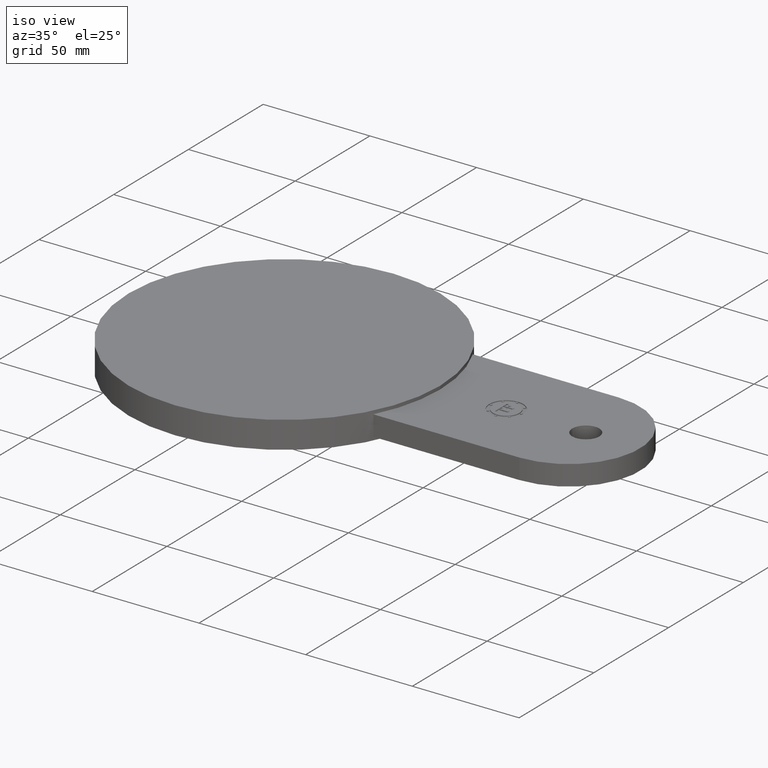
[diagram: clean part render]
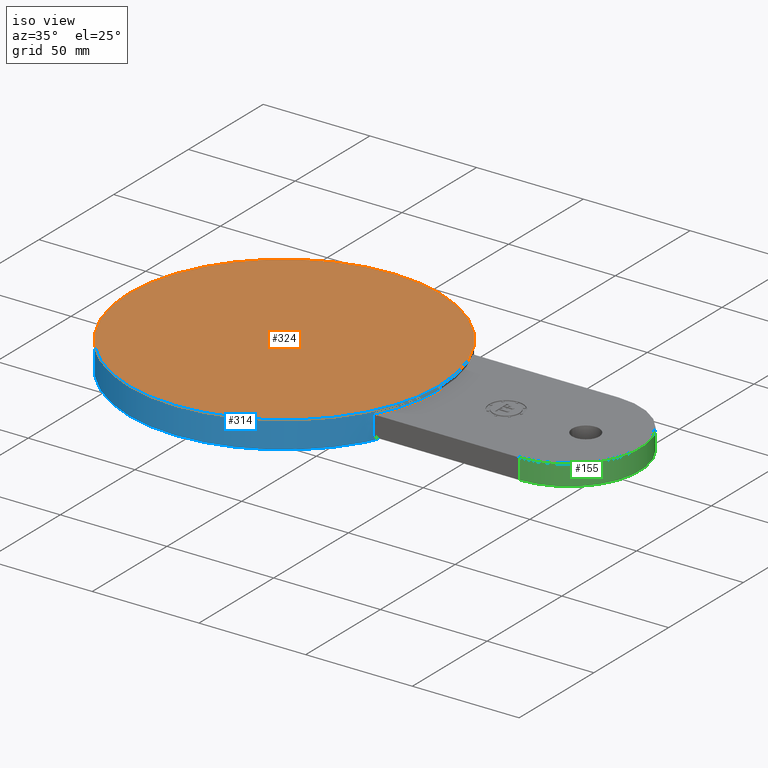
[diagram: same view with three faces highlighted in distinct colors, each labeled with its STEP entity id]
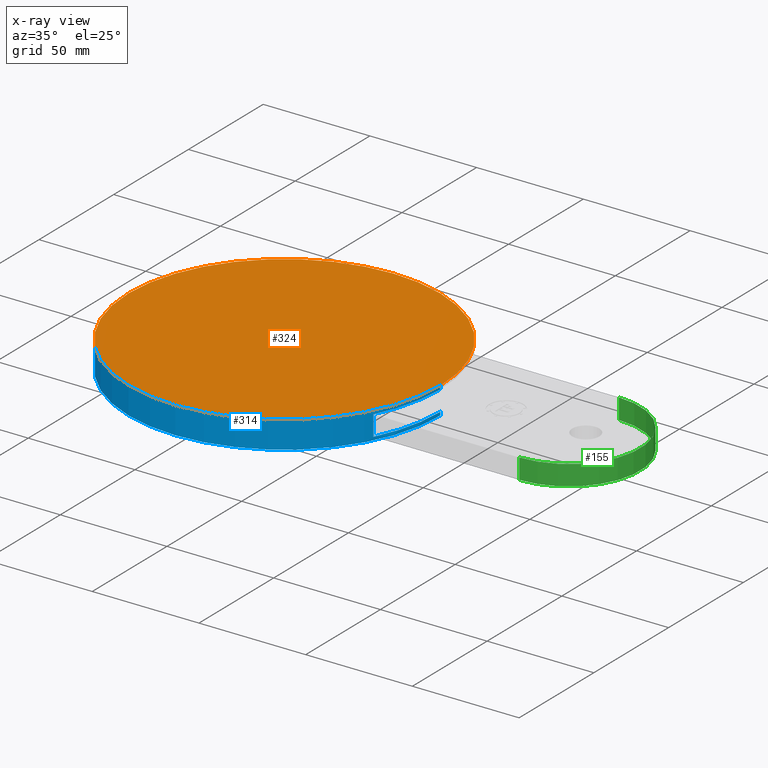
[diagram: x-ray of the same camera — body ghosted, the three highlighted faces saturated]
A machine part, iso view with three faces highlighted in distinct colors.
The next image is the same camera in x-ray (body ghosted, the three faces saturated) — at least one of them is partly hidden behind the body in this view.
Their STEP definitions:

[orange] entity #324 — the highlighted planar face has unit normal (0, 0, 1).
#266=AXIS2_PLACEMENT_3D('Circle Axis2P3D',#264,#265,$) ;
#296=AXIS2_PLACEMENT_3D('Circle Axis2P3D',#294,#295,$) ;
#318=AXIS2_PLACEMENT_3D('Plane Axis2P3D',#315,#316,#317) ;
#261=CARTESIAN_POINT('Vertex',(-2.87500000001,3.52085954756E-016,0.250000000001)) ;
#264=CARTESIAN_POINT('Axis2P3D Location',(0.,0.,0.250000000001)) ;
#268=CARTESIAN_POINT('Vertex',(2.87500000001,0.,0.250000000001)) ;
#294=CARTESIAN_POINT('Axis2P3D Location',(0.,0.,0.250000000001)) ;
#315=CARTESIAN_POINT('Axis2P3D Location',(0.,0.,0.250000000001)) ;
#265=DIRECTION('Axis2P3D Direction',(0.,0.,0.0393700787402)) ;
#295=DIRECTION('Axis2P3D Direction',(0.,0.,0.0393700787402)) ;
#316=DIRECTION('Axis2P3D Direction',(0.,0.,0.0393700787402)) ;
#317=DIRECTION('Axis2P3D XDirection',(0.0393700787402,0.,0.)) ;
#321=ORIENTED_EDGE('',*,*,#270,.T.) ;
#322=ORIENTED_EDGE('',*,*,#298,.T.) ;
#324=ADVANCED_FACE('PartBody',(#323),#319,.T.) ;
#267=CIRCLE('generated circle',#266,2.87500000001) ;
#297=CIRCLE('generated circle',#296,2.87500000001) ;
#270=EDGE_CURVE('',#269,#262,#267,.T.) ;
#298=EDGE_CURVE('',#262,#269,#297,.T.) ;
#320=EDGE_LOOP('',(#321,#322)) ;
#323=FACE_OUTER_BOUND('',#320,.T.) ;
#319=PLANE('',#318) ;
#262=VERTEX_POINT('',#261) ;
#269=VERTEX_POINT('',#268) ;

[blue] entity #314 — the highlighted cylindrical surface (partial cylindrical patch) has radius 73.025 mm, axis along (0, 0, 1).
#82=AXIS2_PLACEMENT_3D('Circle Axis2P3D',#80,#81,$) ;
#230=AXIS2_PLACEMENT_3D('Circle Axis2P3D',#228,#229,$) ;
#250=AXIS2_PLACEMENT_3D('Cylinder Axis2P3D',#247,#248,#249) ;
#296=AXIS2_PLACEMENT_3D('Circle Axis2P3D',#294,#295,$) ;
#301=AXIS2_PLACEMENT_3D('Circle Axis2P3D',#299,#300,$) ;
#40=CARTESIAN_POINT('Line Origine',(2.55920397781,-1.31000000001,0.)) ;
#44=CARTESIAN_POINT('Vertex',(2.55920397781,-1.31000000001,-0.187500000001)) ;
#46=CARTESIAN_POINT('Vertex',(2.55920397781,-1.31000000001,0.187500000001)) ;
#80=CARTESIAN_POINT('Axis2P3D Location',(3.91637728372E-015,-1.81831802458E-015,-0.187500000001)) ;
#84=CARTESIAN_POINT('Vertex',(2.87500000001,0.,-0.187500000001)) ;
#228=CARTESIAN_POINT('Axis2P3D Location',(0.,0.,-0.250000000001)) ;
#232=CARTESIAN_POINT('Vertex',(-2.87500000001,3.52085954756E-016,-0.250000000001)) ;
#234=CARTESIAN_POINT('Vertex',(2.87500000001,0.,-0.250000000001)) ;
#247=CARTESIAN_POINT('Axis2P3D Location',(0.,0.,0.)) ;
#252=CARTESIAN_POINT('Line Origine',(2.87500000001,0.,0.)) ;
#257=CARTESIAN_POINT('Line Origine',(-2.87500000001,3.52085954756E-016,0.)) ;
#261=CARTESIAN_POINT('Vertex',(-2.87500000001,3.52085954756E-016,0.250000000001)) ;
#268=CARTESIAN_POINT('Vertex',(2.87500000001,0.,0.250000000001)) ;
#271=CARTESIAN_POINT('Line Origine',(2.87500000001,0.,0.)) ;
#275=CARTESIAN_POINT('Vertex',(2.87500000001,0.,0.187500000001)) ;
#294=CARTESIAN_POINT('Axis2P3D Location',(0.,0.,0.250000000001)) ;
#299=CARTESIAN_POINT('Axis2P3D Location',(0.,0.,0.187500000001)) ;
#41=DIRECTION('Vector Direction',(0.,0.,0.0393700787402)) ;
#81=DIRECTION('Axis2P3D Direction',(0.,0.,0.0393700787402)) ;
#229=DIRECTION('Axis2P3D Direction',(0.,0.,0.0393700787402)) ;
#248=DIRECTION('Axis2P3D Direction',(0.,0.,0.0393700787402)) ;
#249=DIRECTION('Axis2P3D XDirection',(-0.0393700787402,4.82144409113E-018,0.)) ;
#253=DIRECTION('Vector Direction',(0.,0.,0.0393700787402)) ;
#258=DIRECTION('Vector Direction',(0.,0.,0.0393700787402)) ;
#272=DIRECTION('Vector Direction',(0.,0.,0.0393700787402)) ;
#295=DIRECTION('Axis2P3D Direction',(0.,0.,0.0393700787402)) ;
#300=DIRECTION('Axis2P3D Direction',(0.,0.,0.0393700787402)) ;
#42=VECTOR('Line Direction',#41,0.0393700787402) ;
#254=VECTOR('Line Direction',#253,0.0393700787402) ;
#259=VECTOR('Line Direction',#258,0.0393700787402) ;
#273=VECTOR('Line Direction',#272,0.0393700787402) ;
#305=ORIENTED_EDGE('',*,*,#277,.T.) ;
#306=ORIENTED_EDGE('',*,*,#298,.F.) ;
#307=ORIENTED_EDGE('',*,*,#263,.F.) ;
#308=ORIENTED_EDGE('',*,*,#236,.T.) ;
#309=ORIENTED_EDGE('',*,*,#256,.T.) ;
#310=ORIENTED_EDGE('',*,*,#86,.F.) ;
#311=ORIENTED_EDGE('',*,*,#48,.T.) ;
#312=ORIENTED_EDGE('',*,*,#303,.T.) ;
#314=ADVANCED_FACE('PartBody',(#313),#251,.T.) ;
#83=CIRCLE('generated circle',#82,2.87500000001) ;
#231=CIRCLE('generated circle',#230,2.87500000001) ;
#297=CIRCLE('generated circle',#296,2.87500000001) ;
#302=CIRCLE('generated circle',#301,2.87500000001) ;
#251=CYLINDRICAL_SURFACE('generated cylinder',#250,2.87500000001) ;
#48=EDGE_CURVE('',#45,#47,#43,.T.) ;
#86=EDGE_CURVE('',#45,#85,#83,.T.) ;
#236=EDGE_CURVE('',#233,#235,#231,.T.) ;
#256=EDGE_CURVE('',#235,#85,#255,.T.) ;
#263=EDGE_CURVE('',#233,#262,#260,.T.) ;
#277=EDGE_CURVE('',#276,#269,#274,.T.) ;
#298=EDGE_CURVE('',#262,#269,#297,.T.) ;
#303=EDGE_CURVE('',#47,#276,#302,.T.) ;
#304=EDGE_LOOP('',(#305,#306,#307,#308,#309,#310,#311,#312)) ;
#313=FACE_OUTER_BOUND('',#304,.T.) ;
#43=LINE('Line',#40,#42) ;
#255=LINE('Line',#252,#254) ;
#260=LINE('Line',#257,#259) ;
#274=LINE('Line',#271,#273) ;
#45=VERTEX_POINT('',#44) ;
#47=VERTEX_POINT('',#46) ;
#85=VERTEX_POINT('',#84) ;
#233=VERTEX_POINT('',#232) ;
#235=VERTEX_POINT('',#234) ;
#262=VERTEX_POINT('',#261) ;
#269=VERTEX_POINT('',#268) ;
#276=VERTEX_POINT('',#275) ;

[green] entity #155 — the highlighted cylindrical surface (partial cylindrical patch) has radius 33.274 mm, axis along (0, 0, 1).
#103=AXIS2_PLACEMENT_3D('Circle Axis2P3D',#101,#102,$) ;
#135=AXIS2_PLACEMENT_3D('Cylinder Axis2P3D',#132,#133,#134) ;
#146=AXIS2_PLACEMENT_3D('Circle Axis2P3D',#144,#145,$) ;
#53=CARTESIAN_POINT('Vertex',(5.24920397782,-1.31000000001,-0.187500000001)) ;
#56=CARTESIAN_POINT('Line Origine',(5.24920397782,-1.31000000001,0.)) ;
#60=CARTESIAN_POINT('Vertex',(5.24920397782,-1.31000000001,0.187500000001)) ;
#98=CARTESIAN_POINT('Vertex',(5.24920397782,1.31000000001,-0.187500000001)) ;
#101=CARTESIAN_POINT('Axis2P3D Location',(5.24920397782,0.,-0.187500000001)) ;
#132=CARTESIAN_POINT('Axis2P3D Location',(5.24920397782,0.,0.)) ;
#137=CARTESIAN_POINT('Line Origine',(5.24920397782,1.31000000001,0.)) ;
#141=CARTESIAN_POINT('Vertex',(5.24920397782,1.31000000001,0.187500000001)) ;
#144=CARTESIAN_POINT('Axis2P3D Location',(5.24920397782,0.,0.187500000001)) ;
#57=DIRECTION('Vector Direction',(0.,0.,0.0393700787402)) ;
#102=DIRECTION('Axis2P3D Direction',(0.,0.,0.0393700787402)) ;
#133=DIRECTION('Axis2P3D Direction',(0.,0.,0.0393700787402)) ;
#134=DIRECTION('Axis2P3D XDirection',(-7.2321661367E-018,-0.0393700787402,-0.)) ;
#138=DIRECTION('Vector Direction',(0.,0.,0.0393700787402)) ;
#145=DIRECTION('Axis2P3D Direction',(0.,0.,0.0393700787402)) ;
#58=VECTOR('Line Direction',#57,0.0393700787402) ;
#139=VECTOR('Line Direction',#138,0.0393700787402) ;
#150=ORIENTED_EDGE('',*,*,#62,.F.) ;
#151=ORIENTED_EDGE('',*,*,#105,.T.) ;
#152=ORIENTED_EDGE('',*,*,#143,.T.) ;
#153=ORIENTED_EDGE('',*,*,#148,.F.) ;
#155=ADVANCED_FACE('PartBody',(#154),#136,.T.) ;
#104=CIRCLE('generated circle',#103,1.31000000001) ;
#147=CIRCLE('generated circle',#146,1.31000000001) ;
#136=CYLINDRICAL_SURFACE('generated cylinder',#135,1.31000000001) ;
#62=EDGE_CURVE('',#54,#61,#59,.T.) ;
#105=EDGE_CURVE('',#54,#99,#104,.T.) ;
#143=EDGE_CURVE('',#99,#142,#140,.T.) ;
#148=EDGE_CURVE('',#61,#142,#147,.T.) ;
#149=EDGE_LOOP('',(#150,#151,#152,#153)) ;
#154=FACE_OUTER_BOUND('',#149,.T.) ;
#59=LINE('Line',#56,#58) ;
#140=LINE('Line',#137,#139) ;
#54=VERTEX_POINT('',#53) ;
#61=VERTEX_POINT('',#60) ;
#99=VERTEX_POINT('',#98) ;
#142=VERTEX_POINT('',#141) ;